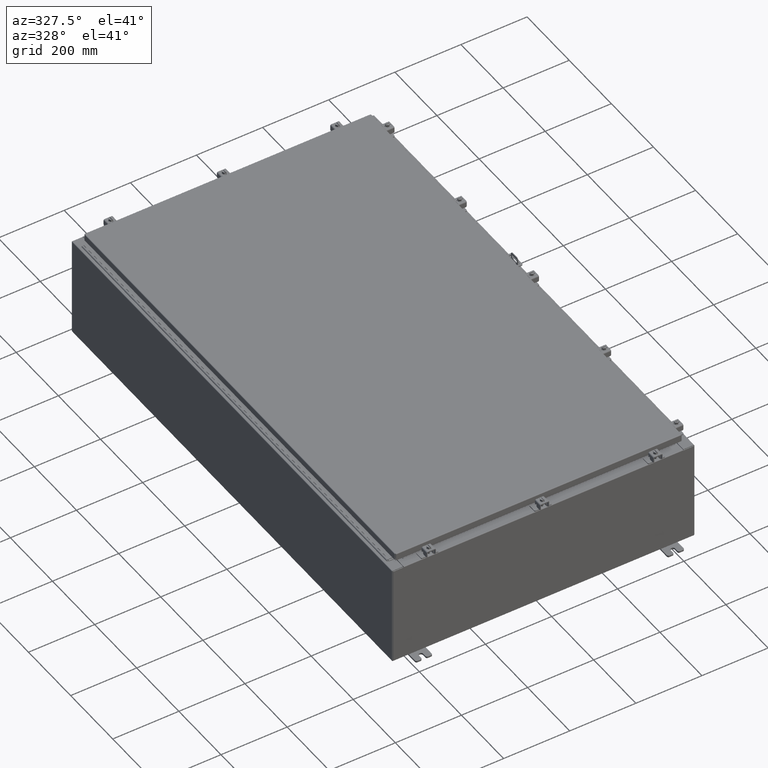
[diagram: clean part render]
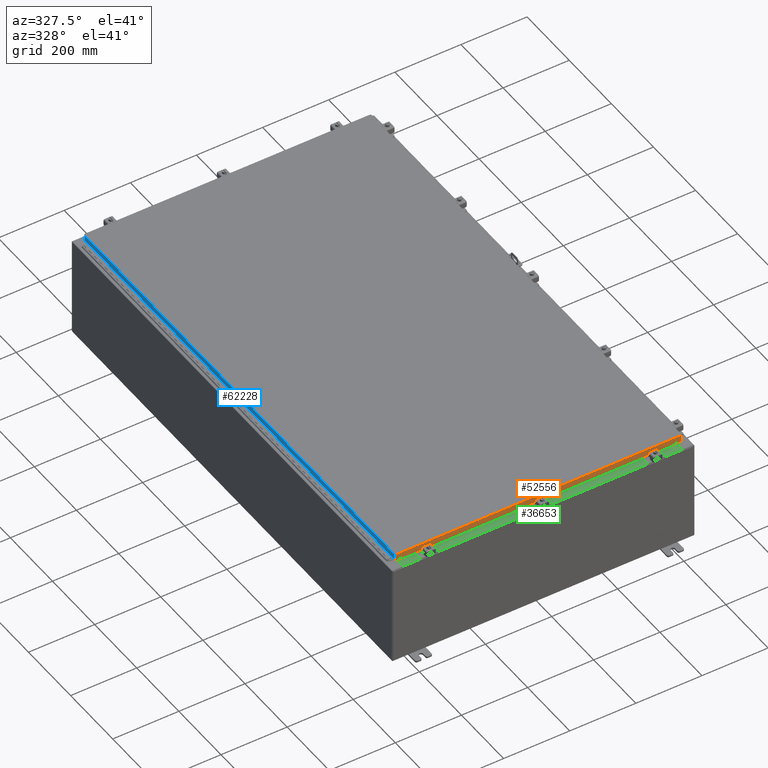
[diagram: same view with three faces highlighted in distinct colors, each labeled with its STEP entity id]
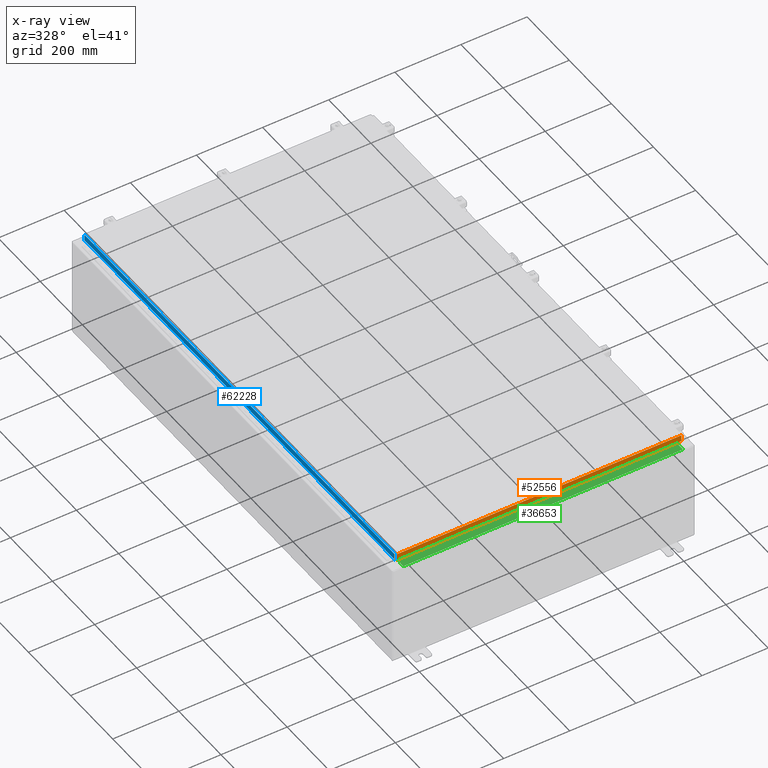
[diagram: x-ray of the same camera — body ghosted, the three highlighted faces saturated]
A machine part, auxiliary view with three faces highlighted in distinct colors.
The next image is the same camera in x-ray (body ghosted, the three faces saturated) — at least one of them is partly hidden behind the body in this view.
Their STEP definitions:

[orange] entity #52556 — the highlighted planar face has unit normal (-0, 1, -0).
#1005 = LINE ( 'NONE', #17719, #14268 ) ;
#3080 = VECTOR ( 'NONE', #13913, 39.37007874015748100 ) ;
#3211 = DIRECTION ( 'NONE',  ( -6.989207801985715000E-031, 1.000000000000000000, -5.637761885544721100E-015 ) ) ;
#6265 = CARTESIAN_POINT ( 'NONE',  ( 17.07800000000000300, -29.09400000000000100, -0.08769999999999589200 ) ) ;
#8019 = EDGE_CURVE ( 'NONE', #37767, #47012, #56391, .T. ) ;
#9319 = LINE ( 'NONE', #53680, #59177 ) ;
#10763 = CARTESIAN_POINT ( 'NONE',  ( -16.98915786437626700, -29.09400000000000100, 1.639108796198558000E-013 ) ) ;
#12908 = VECTOR ( 'NONE', #21293, 39.37007874015748100 ) ;
#13037 = PLANE ( 'NONE',  #45195 ) ;
#13273 = ORIENTED_EDGE ( 'NONE', *, *, #55735, .F. ) ;
#13913 = DIRECTION ( 'NONE',  ( -1.000000000000000000, 0.0000000000000000000, 0.0000000000000000000 ) ) ;
#14268 = VECTOR ( 'NONE', #32526, 39.37007874015748100 ) ;
#14483 = LINE ( 'NONE', #6265, #12908 ) ;
#16642 = VECTOR ( 'NONE', #23475, 39.37007874015748100 ) ;
#17719 = CARTESIAN_POINT ( 'NONE',  ( 17.07800000000000300, -29.09400000000000500, -0.8499999999999999800 ) ) ;
#18457 = CARTESIAN_POINT ( 'NONE',  ( 16.98915786437627100, -29.09400000000000100, -0.07470000000000015500 ) ) ;
#19102 = CARTESIAN_POINT ( 'NONE',  ( -16.23915786437626000, -29.09400000000000800, -0.8499999999999999800 ) ) ;
#21108 = LINE ( 'NONE', #10763, #59271 ) ;
#21293 = DIRECTION ( 'NONE',  ( 1.000000000000000000, 6.989207801985715800E-031, -3.922586267643549700E-045 ) ) ;
#21693 = EDGE_CURVE ( 'NONE', #40541, #27503, #42855, .T. ) ;
#21844 = CARTESIAN_POINT ( 'NONE',  ( 16.23915786437626400, -29.09400000000000800, -0.8499999999999999800 ) ) ;
#23475 = DIRECTION ( 'NONE',  ( -0.0000000000000000000, -5.637761885544721800E-015, -1.000000000000000000 ) ) ;
#23537 = CARTESIAN_POINT ( 'NONE',  ( 16.98915786437627100, -29.09400000000000500, -0.8499999999999999800 ) ) ;
#25653 = ORIENTED_EDGE ( 'NONE', *, *, #8019, .F. ) ;
#26426 = ORIENTED_EDGE ( 'NONE', *, *, #41982, .T. ) ;
#27503 = VERTEX_POINT ( 'NONE', #19102 ) ;
#29882 = VERTEX_POINT ( 'NONE', #62555 ) ;
#32501 = FACE_OUTER_BOUND ( 'NONE', #45168, .T. ) ;
#32526 = DIRECTION ( 'NONE',  ( -1.000000000000000000, -0.0000000000000000000, 1.239713195391617100E-016 ) ) ;
#35349 = CARTESIAN_POINT ( 'NONE',  ( 16.98915786437627100, -29.09400000000000100, -0.08769999999999589200 ) ) ;
#37767 = VERTEX_POINT ( 'NONE', #35349 ) ;
#38083 = DIRECTION ( 'NONE',  ( 0.0000000000000000000, 5.637761885544721100E-015, 1.000000000000000000 ) ) ;
#38682 = DIRECTION ( 'NONE',  ( -1.000000000000000000, -0.0000000000000000000, 1.239713195391617100E-016 ) ) ;
#39025 = EDGE_CURVE ( 'NONE', #29882, #37767, #14483, .T. ) ;
#40541 = VERTEX_POINT ( 'NONE', #21844 ) ;
#41982 = EDGE_CURVE ( 'NONE', #29882, #59275, #21108, .T. ) ;
#42855 = LINE ( 'NONE', #43765, #3080 ) ;
#43765 = CARTESIAN_POINT ( 'NONE',  ( 16.23915786437626400, -29.09400000000000800, -0.8499999999999999800 ) ) ;
#44803 = ORIENTED_EDGE ( 'NONE', *, *, #39025, .F. ) ;
#45163 = CARTESIAN_POINT ( 'NONE',  ( -16.98915786437626700, -29.09400000000000500, -0.8499999999999955400 ) ) ;
#45168 = EDGE_LOOP ( 'NONE', ( #44803, #26426, #13273, #57273, #52280, #25653 ) ) ;
#45195 = AXIS2_PLACEMENT_3D ( 'NONE', #52849, #3211, #38083 ) ;
#47012 = VERTEX_POINT ( 'NONE', #23537 ) ;
#51004 = EDGE_CURVE ( 'NONE', #47012, #40541, #9319, .T. ) ;
#52280 = ORIENTED_EDGE ( 'NONE', *, *, #51004, .F. ) ;
#52556 = ADVANCED_FACE ( 'NONE', ( #32501 ), #13037, .F. ) ;
#52849 = CARTESIAN_POINT ( 'NONE',  ( 0.0000000000000000000, -29.09400000000000100, 1.639108796198558000E-013 ) ) ;
#53680 = CARTESIAN_POINT ( 'NONE',  ( 17.07800000000000300, -29.09400000000000500, -0.8499999999999999800 ) ) ;
#55735 = EDGE_CURVE ( 'NONE', #27503, #59275, #1005, .T. ) ;
#56391 = LINE ( 'NONE', #18457, #16642 ) ;
#57273 = ORIENTED_EDGE ( 'NONE', *, *, #21693, .F. ) ;
#59177 = VECTOR ( 'NONE', #38682, 39.37007874015748100 ) ;
#59271 = VECTOR ( 'NONE', #60602, 39.37007874015748100 ) ;
#59275 = VERTEX_POINT ( 'NONE', #45163 ) ;
#60602 = DIRECTION ( 'NONE',  ( 0.0000000000000000000, -5.637761885544721800E-015, -1.000000000000000000 ) ) ;
#62555 = CARTESIAN_POINT ( 'NONE',  ( -16.98915786437626700, -29.09400000000000100, -0.08769999999999589200 ) ) ;

[blue] entity #62228 — the highlighted planar face has unit normal (1, -0, -0).
#1769 = EDGE_CURVE ( 'NONE', #7786, #51935, #29057, .T. ) ;
#4580 = CARTESIAN_POINT ( 'NONE',  ( -17.07799999999999600, 29.00515786437626500, 2.557009722069750500E-013 ) ) ;
#4934 = ORIENTED_EDGE ( 'NONE', *, *, #42415, .T. ) ;
#5362 = LINE ( 'NONE', #63628, #53655 ) ;
#7727 = FACE_OUTER_BOUND ( 'NONE', #41004, .T. ) ;
#7786 = VERTEX_POINT ( 'NONE', #41366 ) ;
#9001 = DIRECTION ( 'NONE',  ( 7.511783855542072300E-017, 1.000000000000000000, 1.220664876525586700E-016 ) ) ;
#18510 = EDGE_CURVE ( 'NONE', #54965, #7786, #38586, .T. ) ;
#22285 = ORIENTED_EDGE ( 'NONE', *, *, #1769, .F. ) ;
#23788 = VECTOR ( 'NONE', #42777, 39.37007874015748100 ) ;
#29057 = LINE ( 'NONE', #52246, #53954 ) ;
#29285 = VECTOR ( 'NONE', #29427, 39.37007874015748100 ) ;
#29427 = DIRECTION ( 'NONE',  ( -3.034122441942816100E-015, 6.982962677686265900E-015, -1.000000000000000000 ) ) ;
#29647 = DIRECTION ( 'NONE',  ( 1.000000000000000000, -7.511783855542035400E-017, -3.034122441942816500E-015 ) ) ;
#31731 = EDGE_CURVE ( 'NONE', #51935, #38446, #5362, .T. ) ;
#33979 = LINE ( 'NONE', #4580, #29285 ) ;
#37452 = DIRECTION ( 'NONE',  ( -3.034122441942816100E-015, 6.982962677686265900E-015, -1.000000000000000000 ) ) ;
#38446 = VERTEX_POINT ( 'NONE', #55746 ) ;
#38586 = LINE ( 'NONE', #62525, #23788 ) ;
#39460 = CARTESIAN_POINT ( 'NONE',  ( -17.07799999999999600, 1.282862446741196100E-015, 5.245148147835385400E-014 ) ) ;
#41004 = EDGE_LOOP ( 'NONE', ( #52013, #4934, #58933, #22285 ) ) ;
#41366 = CARTESIAN_POINT ( 'NONE',  ( -17.07799999999999900, -29.00515786437626500, -0.08769999999999808500 ) ) ;
#42415 = EDGE_CURVE ( 'NONE', #54965, #38446, #33979, .T. ) ;
#42777 = DIRECTION ( 'NONE',  ( -7.511783855542057500E-017, -1.000000000000000000, -7.511783855542072300E-017 ) ) ;
#49449 = PLANE ( 'NONE',  #60230 ) ;
#50654 = CARTESIAN_POINT ( 'NONE',  ( -17.07799999999999600, 29.00515786437626500, -0.08769999999999589200 ) ) ;
#51935 = VERTEX_POINT ( 'NONE', #52931 ) ;
#52013 = ORIENTED_EDGE ( 'NONE', *, *, #18510, .F. ) ;
#52246 = CARTESIAN_POINT ( 'NONE',  ( -17.07799999999999900, -29.00515786437626500, -0.07470000000000015500 ) ) ;
#52931 = CARTESIAN_POINT ( 'NONE',  ( -17.07800000000000300, -29.00515786437626200, -0.7949999999999984900 ) ) ;
#53655 = VECTOR ( 'NONE', #9001, 39.37007874015748100 ) ;
#53954 = VECTOR ( 'NONE', #37452, 39.37007874015748100 ) ;
#54965 = VERTEX_POINT ( 'NONE', #50654 ) ;
#55746 = CARTESIAN_POINT ( 'NONE',  ( -17.07799999999999600, 29.00515786437626500, -0.7949999999999919400 ) ) ;
#58933 = ORIENTED_EDGE ( 'NONE', *, *, #31731, .F. ) ;
#60230 = AXIS2_PLACEMENT_3D ( 'NONE', #39460, #29647, #64441 ) ;
#62228 = ADVANCED_FACE ( 'NONE', ( #7727 ), #49449, .F. ) ;
#62525 = CARTESIAN_POINT ( 'NONE',  ( -17.07799999999999900, -29.09400000000000100, -0.08770000000000026400 ) ) ;
#63628 = CARTESIAN_POINT ( 'NONE',  ( -17.07800000000000300, -29.09400000000000100, -0.7950000000000007100 ) ) ;
#64441 = DIRECTION ( 'NONE',  ( -3.034122441942816500E-015, 0.0000000000000000000, -1.000000000000000000 ) ) ;

[green] entity #36653 — the highlighted planar face has unit normal (-0, -0, 1).
#1761 = DIRECTION ( 'NONE',  ( -2.688223102148497900E-016, -1.000000000000000000, 3.734140369554233100E-015 ) ) ;
#5380 = CARTESIAN_POINT ( 'NONE',  ( 16.63720000000000400, -0.08770000000000026400, 6.000000000000010700 ) ) ;
#6131 = PLANE ( 'NONE',  #38778 ) ;
#8750 = EDGE_LOOP ( 'NONE', ( #19890, #49551, #29759, #30774 ) ) ;
#9647 = LINE ( 'NONE', #11029, #21342 ) ;
#10052 = VERTEX_POINT ( 'NONE', #35179 ) ;
#11029 = CARTESIAN_POINT ( 'NONE',  ( 4.967270924029854700E-015, -0.08770000000000026400, 5.999999999999999100 ) ) ;
#11150 = DIRECTION ( 'NONE',  ( -2.688223102148504800E-016, -1.000000000000000000, 2.842545071360935400E-015 ) ) ;
#15910 = EDGE_CURVE ( 'NONE', #33873, #53590, #47410, .T. ) ;
#16802 = CARTESIAN_POINT ( 'NONE',  ( -16.63719999999999600, -0.08770000000000026400, 5.999999999999988500 ) ) ;
#19890 = ORIENTED_EDGE ( 'NONE', *, *, #15910, .F. ) ;
#20886 = VECTOR ( 'NONE', #48542, 39.37007874015748100 ) ;
#21342 = VECTOR ( 'NONE', #50821, 39.37007874015748100 ) ;
#25538 = VERTEX_POINT ( 'NONE', #5380 ) ;
#25613 = FACE_OUTER_BOUND ( 'NONE', #8750, .T. ) ;
#26835 = CARTESIAN_POINT ( 'NONE',  ( 16.63720000000000400, -1.300300000000001300, 6.000000000000015100 ) ) ;
#28948 = VECTOR ( 'NONE', #39495, 39.37007874015748100 ) ;
#29759 = ORIENTED_EDGE ( 'NONE', *, *, #60172, .F. ) ;
#30774 = ORIENTED_EDGE ( 'NONE', *, *, #58707, .T. ) ;
#33873 = VERTEX_POINT ( 'NONE', #56760 ) ;
#35179 = CARTESIAN_POINT ( 'NONE',  ( 16.63720000000000400, -1.287299999999999200, 6.000000000000015100 ) ) ;
#36653 = ADVANCED_FACE ( 'NONE', ( #25613 ), #6131, .T. ) ;
#38778 = AXIS2_PLACEMENT_3D ( 'NONE', #40776, #40992, #11150 ) ;
#39495 = DIRECTION ( 'NONE',  ( -1.000000000000000000, -2.688223102148527500E-016, -8.326672684688674100E-016 ) ) ;
#40776 = CARTESIAN_POINT ( 'NONE',  ( 4.993726728675632500E-015, 1.748382715945128500E-014, 5.999999999999999100 ) ) ;
#40992 = DIRECTION ( 'NONE',  ( 8.326672684688675000E-016, 2.842545071360935100E-015, 1.000000000000000000 ) ) ;
#43552 = CARTESIAN_POINT ( 'NONE',  ( -16.63719999999999600, -0.07470000000000234800, 5.999999999999988500 ) ) ;
#43864 = VECTOR ( 'NONE', #1761, 39.37007874015748100 ) ;
#47410 = LINE ( 'NONE', #43552, #20886 ) ;
#48542 = DIRECTION ( 'NONE',  ( 2.688223102148505300E-016, 1.000000000000000000, -2.842545071360935400E-015 ) ) ;
#49551 = ORIENTED_EDGE ( 'NONE', *, *, #49890, .F. ) ;
#49890 = EDGE_CURVE ( 'NONE', #10052, #33873, #55406, .T. ) ;
#50821 = DIRECTION ( 'NONE',  ( -1.000000000000000000, -2.359820727510455800E-016, -8.326672684688674100E-016 ) ) ;
#53590 = VERTEX_POINT ( 'NONE', #16802 ) ;
#54487 = CARTESIAN_POINT ( 'NONE',  ( 16.63720000000000400, -1.287299999999999200, 6.000000000000012400 ) ) ;
#55406 = LINE ( 'NONE', #54487, #28948 ) ;
#56760 = CARTESIAN_POINT ( 'NONE',  ( -16.63719999999999600, -1.287299999999999200, 5.999999999999990200 ) ) ;
#58642 = LINE ( 'NONE', #26835, #43864 ) ;
#58707 = EDGE_CURVE ( 'NONE', #25538, #53590, #9647, .T. ) ;
#60172 = EDGE_CURVE ( 'NONE', #25538, #10052, #58642, .T. ) ;